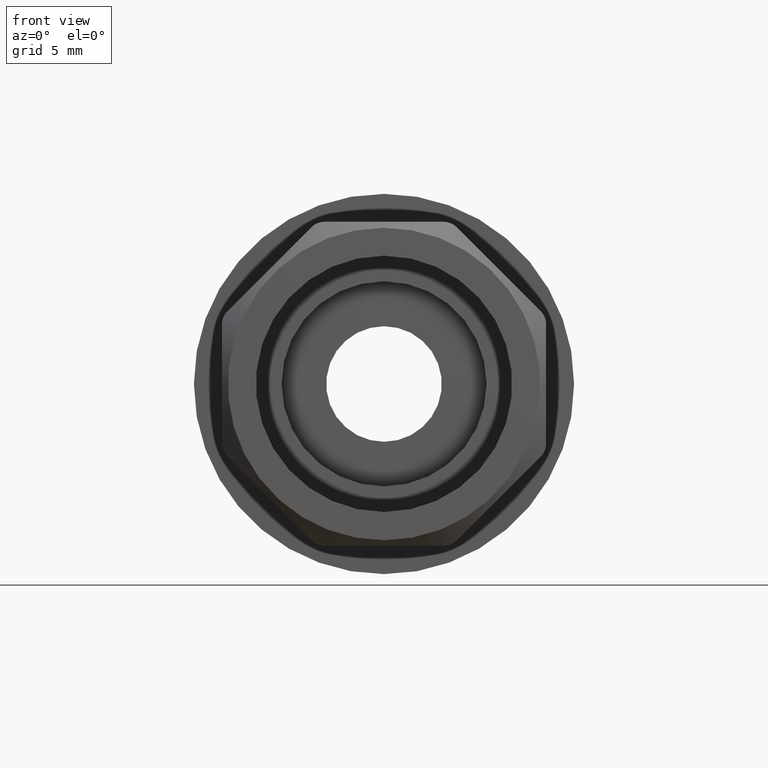
[diagram: clean part render]
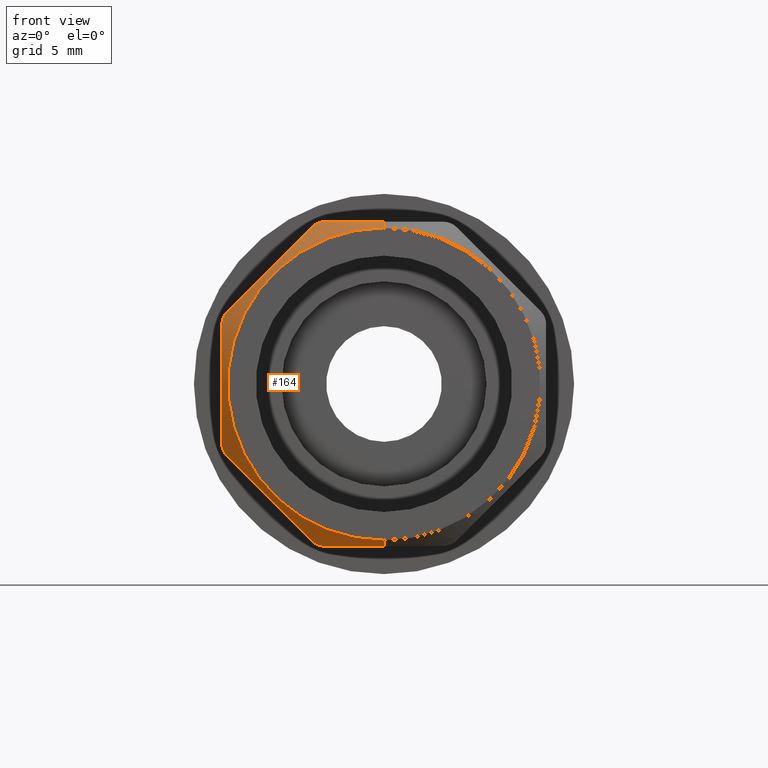
[diagram: same view with one face highlighted and labeled with its STEP entity id]
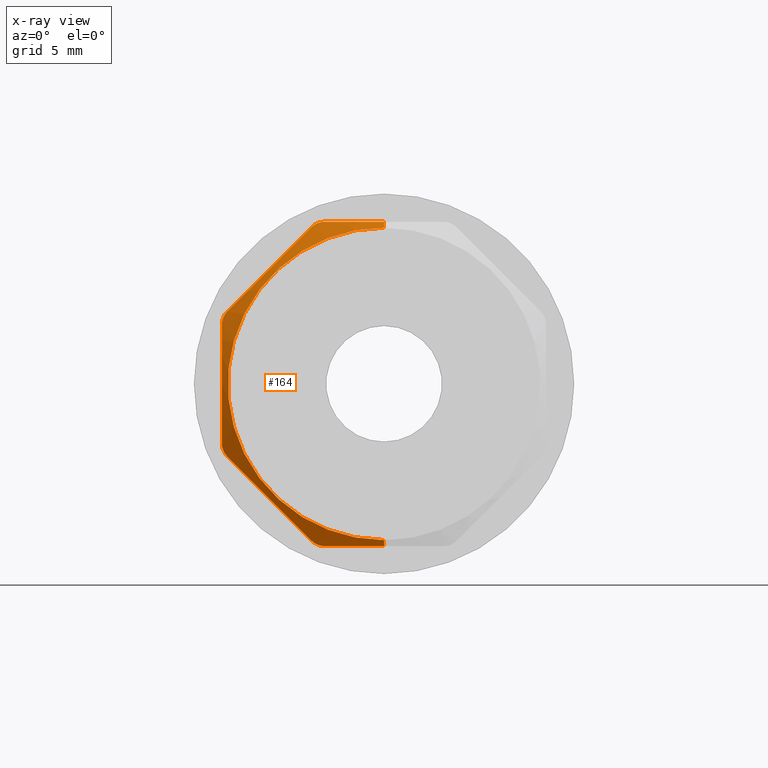
[diagram: x-ray of the same camera — body ghosted, the highlighted face saturated]
A machine part, front view. The second image highlights one B-rep face of the part: STEP entity #164.
The next image is the same camera in x-ray: the body ghosted, the highlighted face saturated — about 0% of this face is hidden behind the body in this view.
In plain terms, the highlighted conical surface has half-angle 45 deg.
Its self-contained STEP definition (entity closure, byte-faithful):
#161 = VERTEX_POINT ( 'NONE', #1576 ) ;
#163 = EDGE_CURVE ( 'NONE', #391, #161, #1578, .T. ) ;
#164 = ADVANCED_FACE ( 'NONE', ( #1639 ), #1638, .T. ) ;
#165 = EDGE_LOOP ( 'NONE', ( #166, #167, #410, #411, #247, #244, #252, #242, #233, #222, #224, #225 ) ) ;
#166 = ORIENTED_EDGE ( 'NONE', *, *, #394, .F. ) ;
#167 = ORIENTED_EDGE ( 'NONE', *, *, #413, .T. ) ;
#222 = ORIENTED_EDGE ( 'NONE', *, *, #223, .T. ) ;
#223 = EDGE_CURVE ( 'NONE', #230, #232, #1709, .T. ) ;
#224 = ORIENTED_EDGE ( 'NONE', *, *, #237, .T. ) ;
#225 = ORIENTED_EDGE ( 'NONE', *, *, #226, .T. ) ;
#226 = EDGE_CURVE ( 'NONE', #238, #395, #1708, .T. ) ;
#230 = VERTEX_POINT ( 'NONE', #1746 ) ;
#231 = EDGE_CURVE ( 'NONE', #239, #230, #1714, .T. ) ;
#232 = VERTEX_POINT ( 'NONE', #1713 ) ;
#233 = ORIENTED_EDGE ( 'NONE', *, *, #231, .T. ) ;
#237 = EDGE_CURVE ( 'NONE', #232, #238, #1711, .T. ) ;
#238 = VERTEX_POINT ( 'NONE', #1712 ) ;
#239 = VERTEX_POINT ( 'NONE', #1710 ) ;
#240 = EDGE_CURVE ( 'NONE', #251, #239, #1715, .T. ) ;
#242 = ORIENTED_EDGE ( 'NONE', *, *, #240, .T. ) ;
#244 = ORIENTED_EDGE ( 'NONE', *, *, #245, .T. ) ;
#245 = EDGE_CURVE ( 'NONE', #249, #246, #1782, .T. ) ;
#246 = VERTEX_POINT ( 'NONE', #1781 ) ;
#247 = ORIENTED_EDGE ( 'NONE', *, *, #248, .T. ) ;
#248 = EDGE_CURVE ( 'NONE', #417, #249, #1766, .T. ) ;
#249 = VERTEX_POINT ( 'NONE', #1767 ) ;
#250 = EDGE_CURVE ( 'NONE', #246, #251, #1769, .T. ) ;
#251 = VERTEX_POINT ( 'NONE', #1765 ) ;
#252 = ORIENTED_EDGE ( 'NONE', *, *, #250, .T. ) ;
#391 = VERTEX_POINT ( 'NONE', #1948 ) ;
#392 = VERTEX_POINT ( 'NONE', #1947 ) ;
#394 = EDGE_CURVE ( 'NONE', #392, #395, #1946, .T. ) ;
#395 = VERTEX_POINT ( 'NONE', #1942 ) ;
#410 = ORIENTED_EDGE ( 'NONE', *, *, #163, .T. ) ;
#411 = ORIENTED_EDGE ( 'NONE', *, *, #416, .T. ) ;
#413 = EDGE_CURVE ( 'NONE', #392, #391, #1984, .T. ) ;
#416 = EDGE_CURVE ( 'NONE', #161, #417, #2100, .T. ) ;
#417 = VERTEX_POINT ( 'NONE', #2071 ) ;
#1569 = DIRECTION ( 'NONE',  ( 0.0000000000000000000, 0.7071067811865465700, 0.7071067811865484600 ) ) ;
#1570 = VECTOR ( 'NONE', #1569, 39.37007874015748100 ) ;
#1571 = CARTESIAN_POINT ( 'NONE',  ( 0.0000000000000000000, 0.05100000000000008700, 0.4699999999999997500 ) ) ;
#1576 = CARTESIAN_POINT ( 'NONE',  ( 0.0000000000000000000, 0.01600000000000048300, 0.4350000000000000500 ) ) ;
#1578 = LINE ( 'NONE', #1571, #1570 ) ;
#1634 = DIRECTION ( 'NONE',  ( 0.0000000000000000000, 0.0000000000000000000, 1.000000000000000000 ) ) ;
#1635 = DIRECTION ( 'NONE',  ( -0.0000000000000000000, 1.000000000000000000, -0.0000000000000000000 ) ) ;
#1636 = CARTESIAN_POINT ( 'NONE',  ( 0.0000000000000000000, 0.05100000000000008700, 0.0000000000000000000 ) ) ;
#1637 = AXIS2_PLACEMENT_3D ( 'NONE', #1636, #1635, #1634 ) ;
#1638 = CONICAL_SURFACE ( 'NONE', #1637, 0.4699999999999997500, 0.7853981633974496100 ) ;
#1639 = FACE_OUTER_BOUND ( 'NONE', #165, .T. ) ;
#1657 = CARTESIAN_POINT ( 'NONE',  ( -0.3459851113554610100, 0.01916869433082350400, -0.2691977882768352100 ) ) ;
#1658 = CARTESIAN_POINT ( 'NONE',  ( -0.3554619312501046100, 0.02104257011175864700, -0.2597209683821916600 ) ) ;
#1659 = CARTESIAN_POINT ( 'NONE',  ( -0.3836539213433939900, 0.02834012702882258300, -0.2315289782889023700 ) ) ;
#1666 = CARTESIAN_POINT ( 'NONE',  ( -0.4350000000000000000, 0.04431025181242887600, 0.1594722215136414600 ) ) ;
#1667 = CARTESIAN_POINT ( 'NONE',  ( -0.4350000000000000500, 0.04540579261472307100, 0.1626550660251434000 ) ) ;
#1668 = CARTESIAN_POINT ( 'NONE',  ( -0.4346991889429438500, 0.04625350911946208400, 0.1658549162706941200 ) ) ;
#1669 = CARTESIAN_POINT ( 'NONE',  ( -0.4334402495693258600, 0.04741592575694701700, 0.1722898030175584700 ) ) ;
#1670 = CARTESIAN_POINT ( 'NONE',  ( -0.4324655825754190600, 0.04772072776175401200, 0.1755356765034554700 ) ) ;
#1671 = CARTESIAN_POINT ( 'NONE',  ( -0.4299258461256823500, 0.04772126609509470100, 0.1816687182040025200 ) ) ;
#1672 = CARTESIAN_POINT ( 'NONE',  ( -0.4283247581517784000, 0.04741834454662473300, 0.1846467639706937900 ) ) ;
#1673 = CARTESIAN_POINT ( 'NONE',  ( -0.4246584347559426700, 0.04625473667914768000, 0.1900990203920858200 ) ) ;
#1674 = CARTESIAN_POINT ( 'NONE',  ( -0.4226062269244378900, 0.04540592741609708600, 0.1925766727078583900 ) ) ;
#1675 = CARTESIAN_POINT ( 'NONE',  ( -0.4203553390593273700, 0.04431025181242887600, 0.1948275605729688500 ) ) ;
#1676 = CARTESIAN_POINT ( 'NONE',  ( -0.1073428911926482400, 0.02886961644563587300, -0.4349999999999997800 ) ) ;
#1677 = CARTESIAN_POINT ( 'NONE',  ( -0.1336183477352217700, 0.03588301781563015700, -0.4350000000000000000 ) ) ;
#1678 = CARTESIAN_POINT ( 'NONE',  ( -0.1466651583014896300, 0.03990203763301097800, -0.4350000000000000500 ) ) ;
#1685 = CARTESIAN_POINT ( 'NONE',  ( -0.4246558802659827800, 0.04625350911946206300, -0.1901016082897129800 ) ) ;
#1686 = CARTESIAN_POINT ( 'NONE',  ( -0.4283158277526700200, 0.04741592575694698200, -0.1846612516666498200 ) ) ;
#1687 = CARTESIAN_POINT ( 'NONE',  ( -0.4299218132646311400, 0.04772072776175399800, -0.1816768788731080400 ) ) ;
#1688 = CARTESIAN_POINT ( 'NONE',  ( -0.4324626637743522700, 0.04772126609509466700, -0.1755442986313159600 ) ) ;
#1689 = CARTESIAN_POINT ( 'NONE',  ( -0.4334363199670400700, 0.04741834454662477400, -0.1723063621113810600 ) ) ;
#1690 = CARTESIAN_POINT ( 'NONE',  ( -0.4346991653201558400, 0.04625473667914774300, -0.1658585524878285200 ) ) ;
#1691 = CARTESIAN_POINT ( 'NONE',  ( -0.4350000000000000000, 0.04540592741609713500, -0.1626554576598619500 ) ) ;
#1693 = CARTESIAN_POINT ( 'NONE',  ( -0.4350000000000000500, 0.03587058618648769600, -0.1335779424265315400 ) ) ;
#1694 = CARTESIAN_POINT ( 'NONE',  ( -0.4349999999999999400, 0.02884951343435125700, -0.1072613779915771600 ) ) ;
#1695 = CARTESIAN_POINT ( 'NONE',  ( -0.4350000000000000000, 0.02585350790627736300, -0.09402715413032285100 ) ) ;
#1696 = CARTESIAN_POINT ( 'NONE',  ( -0.4349999999999999400, 0.01856497870659802200, -0.05407364847885750400 ) ) ;
#1697 = CARTESIAN_POINT ( 'NONE',  ( -0.4349999999999999400, 0.01598413540372542500, -0.02710173301016184300 ) ) ;
#1698 = CARTESIAN_POINT ( 'NONE',  ( -0.4349999999999998900, 0.01603195070215064600, 0.05496382127026476500 ) ) ;
#1699 = CARTESIAN_POINT ( 'NONE',  ( 5.327037639127345800E-017, 0.01600000000000041700, -0.4350000000000000000 ) ) ;
#1700 = CARTESIAN_POINT ( 'NONE',  ( -0.02731059220175224200, 0.01600000000000041300, -0.4350000000000000500 ) ) ;
#1701 = CARTESIAN_POINT ( 'NONE',  ( -0.05423920715912203300, 0.01858802767087004000, -0.4350000000000000500 ) ) ;
#1702 = CARTESIAN_POINT ( 'NONE',  ( -0.09412946813277170400, 0.02587577407953641300, -0.4349999999999999400 ) ) ;
#1708 = B_SPLINE_CURVE_WITH_KNOTS ( 'NONE', 3,
 ( #1744, #1678, #1677, #1676, #1702, #1701, #1700, #1699 ),
 .UNSPECIFIED., .F., .F.,
 ( 4, 2, 2, 4 ),
 ( 0.005386053860117226600, 0.006411637653492693500, 0.007437221446868161300, 0.009488389033619096900 ),
 .UNSPECIFIED. ) ;
#1709 = B_SPLINE_CURVE_WITH_KNOTS ( 'NONE', 3,
 ( #1751, #1750, #1659, #1658, #1657, #1779, #1778, #1777, #1789, #1788 ),
 .UNSPECIFIED., .F., .F.,
 ( 4, 2, 2, 2, 4 ),
 ( 0.0004948058842006148200, 0.002553506993614547900, 0.003582857548321512800, 0.004612208103028477700, 0.008729610321856337200 ),
 .UNSPECIFIED. ) ;
#1710 = CARTESIAN_POINT ( 'NONE',  ( -0.4349999999999999400, 0.04431025181242893200, -0.1594722215136416500 ) ) ;
#1711 = B_SPLINE_CURVE_WITH_KNOTS ( 'NONE', 3,
 ( #1787, #1732, #1731, #1730, #1729, #1728, #1727, #1726, #1725, #1724 ),
 .UNSPECIFIED., .F., .F.,
 ( 4, 2, 2, 2, 4 ),
 ( 8.940560153363745000E-019, 0.0002533068974419961700, 0.0005066137948839914700, 0.0007599206923259867700, 0.001013227589767982100 ),
 .UNSPECIFIED. ) ;
#1712 = CARTESIAN_POINT ( 'NONE',  ( -0.1594722215136429600, 0.04431025181242567000, -0.4350000000000000000 ) ) ;
#1713 = CARTESIAN_POINT ( 'NONE',  ( -0.1948275605729688200, 0.04431025181242887600, -0.4203553390593273700 ) ) ;
#1714 = B_SPLINE_CURVE_WITH_KNOTS ( 'NONE', 3,
 ( #1718, #1691, #1690, #1689, #1688, #1687, #1686, #1685, #1761, #1760 ),
 .UNSPECIFIED., .F., .F.,
 ( 4, 2, 2, 2, 4 ),
 ( 0.0000000000000000000, 0.0002533068974419999600, 0.0005066137948839999300, 0.0007599206923259998900, 0.001013227589767999900 ),
 .UNSPECIFIED. ) ;
#1715 = B_SPLINE_CURVE_WITH_KNOTS ( 'NONE', 3,
 ( #1717, #1716, #1698, #1697, #1696, #1695, #1694, #1693, #1784, #1783 ),
 .UNSPECIFIED., .F., .F.,
 ( 4, 2, 2, 2, 4 ),
 ( 0.008875788524742470700, 0.01296048355959327800, 0.01500283107701868100, 0.01602400483573138100, 0.01704517859444408500 ),
 .UNSPECIFIED. ) ;
#1716 = CARTESIAN_POINT ( 'NONE',  ( -0.4350000000000000000, 0.02656700592925968400, 0.1079232580636166500 ) ) ;
#1717 = CARTESIAN_POINT ( 'NONE',  ( -0.4350000000000000000, 0.04431025181242887600, 0.1594722215136414600 ) ) ;
#1718 = CARTESIAN_POINT ( 'NONE',  ( -0.4349999999999999400, 0.04431025181242893200, -0.1594722215136416500 ) ) ;
#1724 = CARTESIAN_POINT ( 'NONE',  ( -0.1594722215136429600, 0.04431025181242567000, -0.4350000000000000000 ) ) ;
#1725 = CARTESIAN_POINT ( 'NONE',  ( -0.1626550660251433500, 0.04540579261472303000, -0.4350000000000000500 ) ) ;
#1726 = CARTESIAN_POINT ( 'NONE',  ( -0.1658549162706946500, 0.04625350911946223700, -0.4346991889429436800 ) ) ;
#1727 = CARTESIAN_POINT ( 'NONE',  ( -0.1722898030175589700, 0.04741592575694708600, -0.4334402495693256400 ) ) ;
#1728 = CARTESIAN_POINT ( 'NONE',  ( -0.1755356765034558300, 0.04772072776175404600, -0.4324655825754187800 ) ) ;
#1729 = CARTESIAN_POINT ( 'NONE',  ( -0.1816687182040027900, 0.04772126609509469400, -0.4299258461256821300 ) ) ;
#1730 = CARTESIAN_POINT ( 'NONE',  ( -0.1846467639706940400, 0.04741834454662476100, -0.4283247581517784000 ) ) ;
#1731 = CARTESIAN_POINT ( 'NONE',  ( -0.1900990203920859000, 0.04625473667914773600, -0.4246584347559426700 ) ) ;
#1732 = CARTESIAN_POINT ( 'NONE',  ( -0.1925766727078584200, 0.04540592741609708600, -0.4226062269244377200 ) ) ;
#1733 = CARTESIAN_POINT ( 'NONE',  ( -0.4203553390593273700, 0.04431025181242887600, 0.1948275605729688500 ) ) ;
#1734 = CARTESIAN_POINT ( 'NONE',  ( -0.3839349280544189800, 0.02658171169624243300, 0.2312479715778770200 ) ) ;
#1735 = CARTESIAN_POINT ( 'NONE',  ( -0.3465406357195058300, 0.01602205844017627300, 0.2686422639127903400 ) ) ;
#1736 = CARTESIAN_POINT ( 'NONE',  ( -0.2980083709959456300, 0.01599452912896209100, 0.3171745286363508200 ) ) ;
#1737 = CARTESIAN_POINT ( 'NONE',  ( -0.2883255096915355900, 0.01664436309512634300, 0.3268573899407606900 ) ) ;
#1738 = CARTESIAN_POINT ( 'NONE',  ( -0.2691977882768352100, 0.01916869433082348000, 0.3459851113554611200 ) ) ;
#1739 = CARTESIAN_POINT ( 'NONE',  ( -0.2597209683821917200, 0.02104257011175870000, 0.3554619312501047200 ) ) ;
#1740 = CARTESIAN_POINT ( 'NONE',  ( -0.2315289782889024800, 0.02834012702882264900, 0.3836539213433938800 ) ) ;
#1741 = CARTESIAN_POINT ( 'NONE',  ( -0.2130521685777842500, 0.03543897097840427400, 0.4021307310545120800 ) ) ;
#1742 = CARTESIAN_POINT ( 'NONE',  ( -0.1948275605729689600, 0.04431025181242887600, 0.4203553390593273700 ) ) ;
#1744 = CARTESIAN_POINT ( 'NONE',  ( -0.1594722215136429600, 0.04431025181242567000, -0.4350000000000000000 ) ) ;
#1746 = CARTESIAN_POINT ( 'NONE',  ( -0.4203553390593273200, 0.04431025181242886900, -0.1948275605729690400 ) ) ;
#1750 = CARTESIAN_POINT ( 'NONE',  ( -0.4021307310545119100, 0.03543897097840428100, -0.2130521685777843300 ) ) ;
#1751 = CARTESIAN_POINT ( 'NONE',  ( -0.4203553390593273200, 0.04431025181242886900, -0.1948275605729690400 ) ) ;
#1760 = CARTESIAN_POINT ( 'NONE',  ( -0.4203553390593273200, 0.04431025181242886900, -0.1948275605729690400 ) ) ;
#1761 = CARTESIAN_POINT ( 'NONE',  ( -0.4226059499968726800, 0.04540579261472311300, -0.1925769496354236300 ) ) ;
#1762 = CARTESIAN_POINT ( 'NONE',  ( -0.1658585524878284400, 0.04625473667914774300, 0.4346991653201558400 ) ) ;
#1763 = CARTESIAN_POINT ( 'NONE',  ( -0.1626554576598618400, 0.04540592741609716900, 0.4349999999999999400 ) ) ;
#1764 = CARTESIAN_POINT ( 'NONE',  ( -0.1594722215136416000, 0.04431025181242893900, 0.4350000000000000000 ) ) ;
#1765 = CARTESIAN_POINT ( 'NONE',  ( -0.4350000000000000000, 0.04431025181242887600, 0.1594722215136414600 ) ) ;
#1766 = B_SPLINE_CURVE_WITH_KNOTS ( 'NONE', 3,
 ( #1764, #1763, #1762, #1776, #1775, #1774, #1773, #1772, #1771, #1770 ),
 .UNSPECIFIED., .F., .F.,
 ( 4, 2, 2, 2, 4 ),
 ( 8.940560153363743100E-019, 0.0002533068974420008300, 0.0005066137948840007900, 0.0007599206923260007600, 0.001013227589768000700 ),
 .UNSPECIFIED. ) ;
#1767 = CARTESIAN_POINT ( 'NONE',  ( -0.1948275605729689600, 0.04431025181242887600, 0.4203553390593273700 ) ) ;
#1769 = B_SPLINE_CURVE_WITH_KNOTS ( 'NONE', 3,
 ( #1675, #1674, #1673, #1672, #1671, #1670, #1669, #1668, #1667, #1666 ),
 .UNSPECIFIED., .F., .F.,
 ( 4, 2, 2, 2, 4 ),
 ( 0.0000000000000000000, 0.0002533068974420001800, 0.0005066137948840003600, 0.0007599206923260005400, 0.001013227589768000700 ),
 .UNSPECIFIED. ) ;
#1770 = CARTESIAN_POINT ( 'NONE',  ( -0.1948275605729689600, 0.04431025181242887600, 0.4203553390593273700 ) ) ;
#1771 = CARTESIAN_POINT ( 'NONE',  ( -0.1925769496354235400, 0.04540579261472307100, 0.4226059499968727900 ) ) ;
#1772 = CARTESIAN_POINT ( 'NONE',  ( -0.1901016082897128700, 0.04625350911946203600, 0.4246558802659827800 ) ) ;
#1773 = CARTESIAN_POINT ( 'NONE',  ( -0.1846612516666496800, 0.04741592575694697500, 0.4283158277526701300 ) ) ;
#1774 = CARTESIAN_POINT ( 'NONE',  ( -0.1816768788731079600, 0.04772072776175403200, 0.4299218132646311400 ) ) ;
#1775 = CARTESIAN_POINT ( 'NONE',  ( -0.1755442986313159000, 0.04772126609509474300, 0.4324626637743523800 ) ) ;
#1776 = CARTESIAN_POINT ( 'NONE',  ( -0.1723063621113809800, 0.04741834454662474700, 0.4334363199670400700 ) ) ;
#1777 = CARTESIAN_POINT ( 'NONE',  ( -0.2686422639127903900, 0.01602205844017628000, -0.3465406357195059400 ) ) ;
#1778 = CARTESIAN_POINT ( 'NONE',  ( -0.3171745286363505900, 0.01599452912896207800, -0.2980083709959456300 ) ) ;
#1779 = CARTESIAN_POINT ( 'NONE',  ( -0.3268573899407604700, 0.01664436309512637800, -0.2883255096915357000 ) ) ;
#1781 = CARTESIAN_POINT ( 'NONE',  ( -0.4203553390593273700, 0.04431025181242887600, 0.1948275605729688500 ) ) ;
#1782 = B_SPLINE_CURVE_WITH_KNOTS ( 'NONE', 3,
 ( #1742, #1741, #1740, #1739, #1738, #1737, #1736, #1735, #1734, #1733 ),
 .UNSPECIFIED., .F., .F.,
 ( 4, 2, 2, 2, 4 ),
 ( 0.0004948058842006167700, 0.002553506993614552300, 0.003582857548321518000, 0.004612208103028483800, 0.008729610321856342400 ),
 .UNSPECIFIED. ) ;
#1783 = CARTESIAN_POINT ( 'NONE',  ( -0.4349999999999999400, 0.04431025181242893200, -0.1594722215136416500 ) ) ;
#1784 = CARTESIAN_POINT ( 'NONE',  ( -0.4349999999999998900, 0.03989521963391223800, -0.1466453501565394800 ) ) ;
#1787 = CARTESIAN_POINT ( 'NONE',  ( -0.1948275605729688200, 0.04431025181242887600, -0.4203553390593273700 ) ) ;
#1788 = CARTESIAN_POINT ( 'NONE',  ( -0.1948275605729688200, 0.04431025181242887600, -0.4203553390593273700 ) ) ;
#1789 = CARTESIAN_POINT ( 'NONE',  ( -0.2312479715778770800, 0.02658171169624248500, -0.3839349280544191400 ) ) ;
#1942 = CARTESIAN_POINT ( 'NONE',  ( 5.327037639127345800E-017, 0.01600000000000041700, -0.4350000000000000000 ) ) ;
#1943 = DIRECTION ( 'NONE',  ( 8.659274570719366500E-017, 0.7071067811865465700, -0.7071067811865484600 ) ) ;
#1944 = VECTOR ( 'NONE', #1943, 39.37007874015748100 ) ;
#1945 = CARTESIAN_POINT ( 'NONE',  ( 5.755649862965170700E-017, 0.05100000000000008700, -0.4699999999999997500 ) ) ;
#1946 = LINE ( 'NONE', #1945, #1944 ) ;
#1947 = CARTESIAN_POINT ( 'NONE',  ( 5.425879528643776800E-017, 0.0000000000000000000, -0.4189999999999995400 ) ) ;
#1948 = CARTESIAN_POINT ( 'NONE',  ( 0.0000000000000000000, 0.0000000000000000000, 0.4189999999999995400 ) ) ;
#1980 = DIRECTION ( 'NONE',  ( 0.0000000000000000000, 0.0000000000000000000, 1.000000000000000000 ) ) ;
#1981 = DIRECTION ( 'NONE',  ( -0.0000000000000000000, 1.000000000000000000, -0.0000000000000000000 ) ) ;
#1982 = CARTESIAN_POINT ( 'NONE',  ( 0.0000000000000000000, 0.0000000000000000000, 0.0000000000000000000 ) ) ;
#1983 = AXIS2_PLACEMENT_3D ( 'NONE', #1982, #1981, #1980 ) ;
#1984 = CIRCLE ( 'NONE', #1983, 0.4189999999999995400 ) ;
#2070 = CARTESIAN_POINT ( 'NONE',  ( 0.0000000000000000000, 0.01600000000000048300, 0.4350000000000000500 ) ) ;
#2071 = CARTESIAN_POINT ( 'NONE',  ( -0.1594722215136416000, 0.04431025181242893900, 0.4350000000000000000 ) ) ;
#2076 = CARTESIAN_POINT ( 'NONE',  ( -0.09412946813277185700, 0.02587577407953645800, 0.4349999999999998900 ) ) ;
#2098 = CARTESIAN_POINT ( 'NONE',  ( -0.1466651583014897400, 0.03990203763301099200, 0.4349999999999999400 ) ) ;
#2099 = CARTESIAN_POINT ( 'NONE',  ( -0.1336183477352219900, 0.03588301781563024700, 0.4350000000000000500 ) ) ;
#2100 = B_SPLINE_CURVE_WITH_KNOTS ( 'NONE', 3,
 ( #2070, #2159, #2154, #2076, #2119, #2099, #2098, #2111 ),
 .UNSPECIFIED., .F., .F.,
 ( 4, 2, 2, 4 ),
 ( 0.01296679142914899400, 0.01500598501179654200, 0.01602558180312031700, 0.01704517859444408900 ),
 .UNSPECIFIED. ) ;
#2111 = CARTESIAN_POINT ( 'NONE',  ( -0.1594722215136416000, 0.04431025181242893900, 0.4350000000000000000 ) ) ;
#2119 = CARTESIAN_POINT ( 'NONE',  ( -0.1073428911926485200, 0.02886961644563596300, 0.4349999999999999400 ) ) ;
#2154 = CARTESIAN_POINT ( 'NONE',  ( -0.05423920715912217100, 0.01858802767087007800, 0.4350000000000000000 ) ) ;
#2159 = CARTESIAN_POINT ( 'NONE',  ( -0.02731059220175228000, 0.01600000000000047600, 0.4350000000000001600 ) ) ;